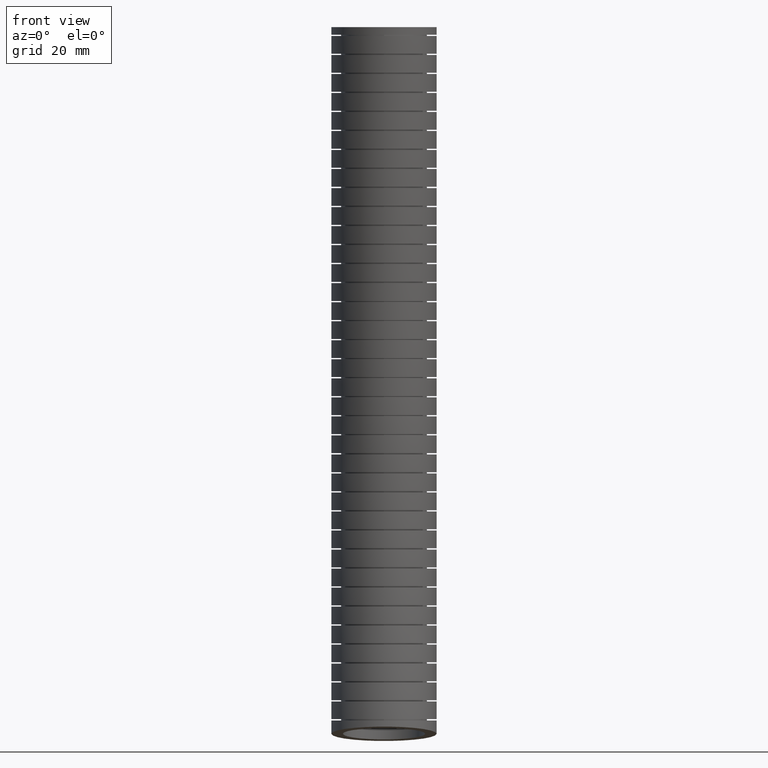
[diagram: clean part render]
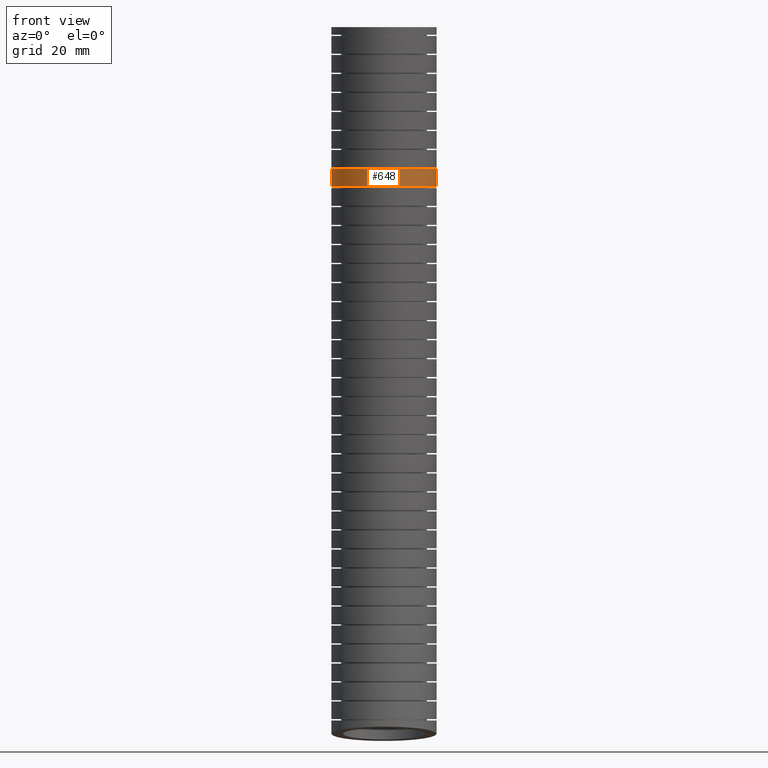
[diagram: same view with one face highlighted and labeled with its STEP entity id]
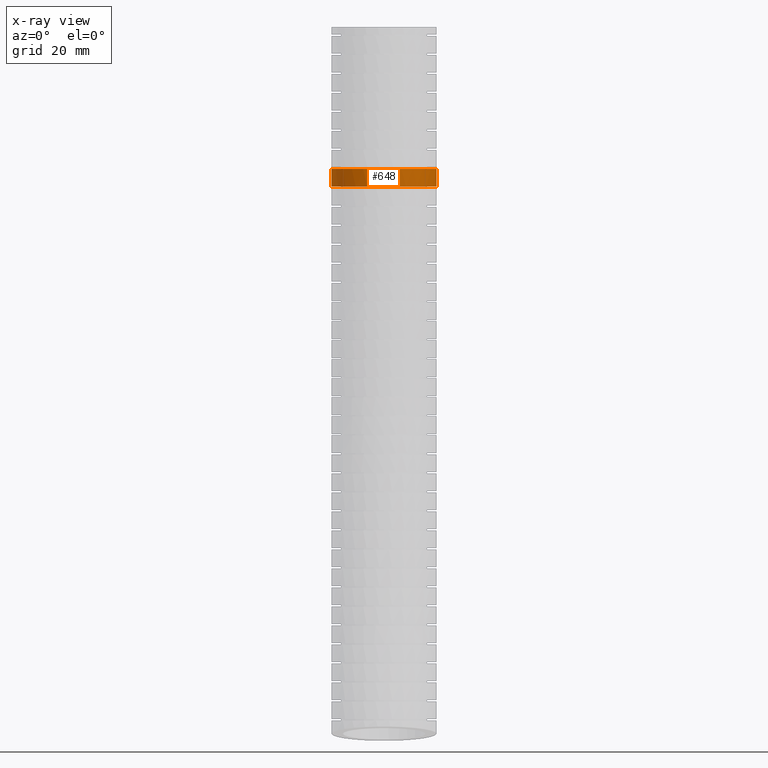
[diagram: x-ray of the same camera — body ghosted, the highlighted face saturated]
A machine part, front view. The second image highlights one B-rep face of the part: STEP entity #648.
The next image is the same camera in x-ray: the body ghosted, the highlighted face saturated — about 0% of this face is hidden behind the body in this view.
In plain terms, the highlighted face is a freeform B-spline surface patch.
Its self-contained STEP definition (entity closure, byte-faithful):
#648 = ADVANCED_FACE ( 'NONE', ( #9587 ), #9604, .T. ) ;
#650 = EDGE_LOOP ( 'NONE', ( #672, #681, #675, #670 ) ) ;
#667 = VERTEX_POINT ( 'NONE', #9816 ) ;
#668 = EDGE_CURVE ( 'NONE', #674, #667, #9860, .T. ) ;
#669 = EDGE_CURVE ( 'NONE', #676, #667, #9866, .T. ) ;
#670 = ORIENTED_EDGE ( 'NONE', *, *, #668, .F. ) ;
#671 = EDGE_CURVE ( 'NONE', #673, #676, #9885, .T. ) ;
#672 = ORIENTED_EDGE ( 'NONE', *, *, #680, .T. ) ;
#673 = VERTEX_POINT ( 'NONE', #9887 ) ;
#674 = VERTEX_POINT ( 'NONE', #9886 ) ;
#675 = ORIENTED_EDGE ( 'NONE', *, *, #669, .T. ) ;
#676 = VERTEX_POINT ( 'NONE', #9967 ) ;
#680 = EDGE_CURVE ( 'NONE', #674, #673, #9989, .T. ) ;
#681 = ORIENTED_EDGE ( 'NONE', *, *, #671, .T. ) ;
#9435 = CARTESIAN_POINT ( 'NONE',  ( 0.05414335177521617500, -0.3643553105292805000, -1.119038931790434800 ) ) ;
#9436 = CARTESIAN_POINT ( 'NONE',  ( 0.09432403986910784000, -0.3563664545651192300, -1.119038931790434600 ) ) ;
#9486 = CARTESIAN_POINT ( 'NONE',  ( 0.02721421621818757900, -0.3669872521209612800, -1.119038931790434100 ) ) ;
#9587 = FACE_OUTER_BOUND ( 'NONE', #650, .T. ) ;
#9602 = CARTESIAN_POINT ( 'NONE',  ( 0.4150000000000000900, 0.0000000000000000000, 0.0000000000000000000 ) ) ;
#9604 =( BOUNDED_SURFACE ( )  B_SPLINE_SURFACE ( 3, 3, ( 
 ( #9602, #9651, #9650, #9649, #9648, #9647 ),
 ( #9645, #9644, #9643, #9642, #9641, #9640 ),
 ( #9639, #9637, #9636, #9635, #9634, #9633 ),
 ( #9632, #9631, #9630, #9629, #9628, #9627 ),
 ( #9626, #9625, #9624, #9623, #9622, #9621 ),
 ( #9620, #9619, #9618, #9617, #9616, #9615 ),
 ( #9614, #9613, #9612, #9611, #9610, #9609 ) ),
 .UNSPECIFIED., .F., .F., .F. ) 
 B_SPLINE_SURFACE_WITH_KNOTS ( ( 4, 3, 4 ),
 ( 4, 1, 1, 4 ),
 ( 0.0000000000000000000, 0.5000000000000000000, 1.000000000000000000 ),
 ( 0.0000000000000000000, 0.5600000000000000500, 0.8973141982067990300, 1.000000000000000000 ),
 .UNSPECIFIED. ) 
 GEOMETRIC_REPRESENTATION_ITEM ( )  RATIONAL_B_SPLINE_SURFACE ( (
 ( 1.000000000000000000, 1.000000000000000000, 1.000000000000000000, 1.000000000000000000, 1.000000000000000000, 1.000000000000000000),
 ( 0.3333333333333333100, 0.3333333333333333100, 0.3333333333333333100, 0.3333333333333333100, 0.3333333333333332600, 0.3333333333333333100),
 ( 0.3333333333333333100, 0.3333333333333333100, 0.3333333333333333100, 0.3333333333333333100, 0.3333333333333332600, 0.3333333333333333100),
 ( 1.000000000000000000, 1.000000000000000000, 1.000000000000000000, 1.000000000000000000, 1.000000000000000000, 1.000000000000000000),
 ( 0.3333333333333333100, 0.3333333333333333100, 0.3333333333333333100, 0.3333333333333333100, 0.3333333333333332600, 0.3333333333333333100),
 ( 0.3333333333333333100, 0.3333333333333333100, 0.3333333333333333100, 0.3333333333333333100, 0.3333333333333332600, 0.3333333333333333100),
 ( 1.000000000000000000, 1.000000000000000000, 1.000000000000000000, 1.000000000000000000, 1.000000000000000000, 1.000000000000000000) ) ) 
 REPRESENTATION_ITEM ( '' )  SURFACE ( )  );
#9609 = CARTESIAN_POINT ( 'NONE',  ( 0.4150000000000000400, -0.03000000000000001600, -5.569999999999998500 ) ) ;
#9610 = CARTESIAN_POINT ( 'NONE',  ( 0.4150000000000000900, -0.01243844818931303500, -5.380037381098891700 ) ) ;
#9611 = CARTESIAN_POINT ( 'NONE',  ( 0.4150000000000000900, 0.06281132015026588700, -4.566063580857106200 ) ) ;
#9612 = CARTESIAN_POINT ( 'NONE',  ( 0.4149999999999999200, 0.1218071073635319700, -2.711443563840852700 ) ) ;
#9613 = CARTESIAN_POINT ( 'NONE',  ( 0.4150000000000000900, 0.04680663936954134600, -1.041922460934817000 ) ) ;
#9614 = CARTESIAN_POINT ( 'NONE',  ( 0.4150000000000000900, 0.0000000000000000000, 0.0000000000000000000 ) ) ;
#9615 = CARTESIAN_POINT ( 'NONE',  ( 0.4150000000000000400, 0.7922141346493595200, -5.683419208173947200 ) ) ;
#9616 = CARTESIAN_POINT ( 'NONE',  ( 0.4150000000000002000, 0.8104118928973711400, -5.486989566509566700 ) ) ;
#9617 = CARTESIAN_POINT ( 'NONE',  ( 0.4150000000000000400, 0.8883877521622221000, -4.645305119166129900 ) ) ;
#9618 = CARTESIAN_POINT ( 'NONE',  ( 0.4150000000000000400, 0.9528682252578860600, -2.732677208711230800 ) ) ;
#9619 = CARTESIAN_POINT ( 'NONE',  ( 0.4150000000000000900, 0.8772143935941071300, -1.050081882658727000 ) ) ;
#9620 = CARTESIAN_POINT ( 'NONE',  ( 0.4150000000000000900, 0.8300000000000001800, 0.0000000000000000000 ) ) ;
#9621 = CARTESIAN_POINT ( 'NONE',  ( -0.4149999999999999200, 0.7922141346493595200, -5.683419208173947200 ) ) ;
#9622 = CARTESIAN_POINT ( 'NONE',  ( -0.4150000000000000400, 0.8104118928973711400, -5.486989566509566700 ) ) ;
#9623 = CARTESIAN_POINT ( 'NONE',  ( -0.4149999999999999200, 0.8883877521622221000, -4.645305119166129900 ) ) ;
#9624 = CARTESIAN_POINT ( 'NONE',  ( -0.4149999999999999200, 0.9528682252578860600, -2.732677208711230800 ) ) ;
#9625 = CARTESIAN_POINT ( 'NONE',  ( -0.4149999999999999200, 0.8772143935941071300, -1.050081882658727000 ) ) ;
#9626 = CARTESIAN_POINT ( 'NONE',  ( -0.4150000000000000400, 0.8300000000000001800, 0.0000000000000000000 ) ) ;
#9627 = CARTESIAN_POINT ( 'NONE',  ( -0.4150000000000000400, -0.02999999999999996800, -5.569999999999998500 ) ) ;
#9628 = CARTESIAN_POINT ( 'NONE',  ( -0.4150000000000000900, -0.01243844818931298000, -5.380037381098891700 ) ) ;
#9629 = CARTESIAN_POINT ( 'NONE',  ( -0.4150000000000000900, 0.06281132015026594200, -4.566063580857106200 ) ) ;
#9630 = CARTESIAN_POINT ( 'NONE',  ( -0.4149999999999999200, 0.1218071073635320100, -2.711443563840852700 ) ) ;
#9631 = CARTESIAN_POINT ( 'NONE',  ( -0.4150000000000000900, 0.04680663936954139500, -1.041922460934817000 ) ) ;
#9632 = CARTESIAN_POINT ( 'NONE',  ( -0.4150000000000000900, 5.082284216461516900E-017, 0.0000000000000000000 ) ) ;
#9633 = CARTESIAN_POINT ( 'NONE',  ( -0.4150000000000000900, -0.8522141346493592500, -5.456580791826050700 ) ) ;
#9634 = CARTESIAN_POINT ( 'NONE',  ( -0.4150000000000002000, -0.8352887892759974800, -5.273085195688222100 ) ) ;
#9635 = CARTESIAN_POINT ( 'NONE',  ( -0.4150000000000000900, -0.7627651118616902700, -4.486822042548080700 ) ) ;
#9636 = CARTESIAN_POINT ( 'NONE',  ( -0.4150000000000000400, -0.7092540105308221500, -2.690209918970475100 ) ) ;
#9637 = CARTESIAN_POINT ( 'NONE',  ( -0.4150000000000000900, -0.7836011148550242600, -1.033763039210906500 ) ) ;
#9639 = CARTESIAN_POINT ( 'NONE',  ( -0.4150000000000000900, -0.8300000000000001800, 0.0000000000000000000 ) ) ;
#9640 = CARTESIAN_POINT ( 'NONE',  ( 0.4150000000000000400, -0.8522141346493592500, -5.456580791826050700 ) ) ;
#9641 = CARTESIAN_POINT ( 'NONE',  ( 0.4150000000000002000, -0.8352887892759974800, -5.273085195688222100 ) ) ;
#9642 = CARTESIAN_POINT ( 'NONE',  ( 0.4150000000000000400, -0.7627651118616902700, -4.486822042548080700 ) ) ;
#9643 = CARTESIAN_POINT ( 'NONE',  ( 0.4150000000000000400, -0.7092540105308221500, -2.690209918970475100 ) ) ;
#9644 = CARTESIAN_POINT ( 'NONE',  ( 0.4150000000000000900, -0.7836011148550242600, -1.033763039210906500 ) ) ;
#9645 = CARTESIAN_POINT ( 'NONE',  ( 0.4150000000000000900, -0.8300000000000001800, 0.0000000000000000000 ) ) ;
#9647 = CARTESIAN_POINT ( 'NONE',  ( 0.4150000000000000400, -0.03000000000000001600, -5.569999999999998500 ) ) ;
#9648 = CARTESIAN_POINT ( 'NONE',  ( 0.4150000000000000900, -0.01243844818931303500, -5.380037381098891700 ) ) ;
#9649 = CARTESIAN_POINT ( 'NONE',  ( 0.4150000000000000900, 0.06281132015026588700, -4.566063580857106200 ) ) ;
#9650 = CARTESIAN_POINT ( 'NONE',  ( 0.4149999999999999200, 0.1218071073635319700, -2.711443563840852700 ) ) ;
#9651 = CARTESIAN_POINT ( 'NONE',  ( 0.4150000000000000900, 0.04680663936954134600, -1.041922460934817000 ) ) ;
#9816 = CARTESIAN_POINT ( 'NONE',  ( 0.4150000000000000400, 0.05330489218318804800, -1.258930700372158200 ) ) ;
#9860 = B_SPLINE_CURVE_WITH_KNOTS ( 'NONE', 3,
 ( #9870, #9869, #9868, #9867 ),
 .UNSPECIFIED., .F., .F.,
 ( 4, 4 ),
 ( 0.2004996607153604100, 0.2255693674716094900 ),
 .UNSPECIFIED. ) ;
#9862 = CARTESIAN_POINT ( 'NONE',  ( -0.4044187189302733700, -0.04079719756292470000, -1.258930700372042500 ) ) ;
#9863 = CARTESIAN_POINT ( 'NONE',  ( -0.4123748926231183800, -0.0006850012226911148700, -1.258930700372042500 ) ) ;
#9864 = CARTESIAN_POINT ( 'NONE',  ( -0.4150000000000001500, 0.02622659230921097300, -1.258930700372042500 ) ) ;
#9865 = CARTESIAN_POINT ( 'NONE',  ( -0.4150000000000000400, 0.05330489218317947100, -1.258930700372042200 ) ) ;
#9866 = B_SPLINE_CURVE_WITH_KNOTS ( 'NONE', 3,
 ( #9865, #9864, #9863, #9862, #9929, #9928, #9927, #9926, #9925, #9924, #9923, #9922, #9921, #9920, #9919, #9918, #9917, #9916, #9915, #9914, #9913, #9912, #9911, #9910, #9909, #9908, #9907, #9906, #9905, #9904, #9903, #9902, #9901, #9900, #9899, #9898, #9897, #9896, #9895, #9894, #9893, #9892, #9891, #9890, #9889, #9888 ),
 .UNSPECIFIED., .F., .F.,
 ( 4, 2, 2, 1, 2, 2, 2, 2, 2, 2, 2, 2, 2, 2, 1, 2, 2, 2, 2, 2, 2, 2, 2, 4 ),
 ( 0.03295498399219155100, 0.03501420266650420000, 0.03604381200366053200, 0.03707342134081685600, 0.03810303067797318100, 0.03913264001512950500, 0.04119185868944215400, 0.04222146802659847200, 0.04325107736375480300, 0.04531029603806744500, 0.04633990537522376900, 0.04736951471238008700, 0.04942873338669273600, 0.05045834272384906000, 0.05148795206100538500, 0.05251756139816170200, 0.05354717073531803400, 0.05560638940963068300, 0.05766560808394331800, 0.05972482675825596700, 0.06075443609541229800, 0.06178404543256862300, 0.06384326410688127800, 0.06590248278119392700 ),
 .UNSPECIFIED. ) ;
#9867 = CARTESIAN_POINT ( 'NONE',  ( 0.4150000000000000400, 0.05330489218318804800, -1.258930700372158200 ) ) ;
#9868 = CARTESIAN_POINT ( 'NONE',  ( 0.4150000000000000900, 0.05157142052511407700, -1.212301728894816400 ) ) ;
#9869 = CARTESIAN_POINT ( 'NONE',  ( 0.4150000000000000900, 0.04979772333044992600, -1.165671077118308300 ) ) ;
#9870 = CARTESIAN_POINT ( 'NONE',  ( 0.4150000000000000900, 0.04798827125236013200, -1.119038931790541400 ) ) ;
#9885 = B_SPLINE_CURVE_WITH_KNOTS ( 'NONE', 3,
 ( #9966, #9965, #9964, #9963 ),
 .UNSPECIFIED., .F., .F.,
 ( 4, 4 ),
 ( 0.2004996607153411200, 0.2255693674715887900 ),
 .UNSPECIFIED. ) ;
#9886 = CARTESIAN_POINT ( 'NONE',  ( 0.4150000000000000900, 0.04798827125236013200, -1.119038931790541400 ) ) ;
#9887 = CARTESIAN_POINT ( 'NONE',  ( -0.4150000000000000900, 0.04798827125235183300, -1.119038931790433700 ) ) ;
#9888 = CARTESIAN_POINT ( 'NONE',  ( 0.4150000000000000400, 0.05330489218318804800, -1.258930700372158200 ) ) ;
#9889 = CARTESIAN_POINT ( 'NONE',  ( 0.4150000000000000900, 0.02589192768821626700, -1.258930700372158200 ) ) ;
#9890 = CARTESIAN_POINT ( 'NONE',  ( 0.4123098817644697000, -0.001236792752080873900, -1.258930700372042200 ) ) ;
#9891 = CARTESIAN_POINT ( 'NONE',  ( 0.4015703743661314700, -0.05492796679321752100, -1.258930700372043100 ) ) ;
#9892 = CARTESIAN_POINT ( 'NONE',  ( 0.3936126862575282700, -0.08094216147562433000, -1.258930700372043100 ) ) ;
#9893 = CARTESIAN_POINT ( 'NONE',  ( 0.3780585712320491700, -0.1183796128824816900, -1.258930700372042500 ) ) ;
#9894 = CARTESIAN_POINT ( 'NONE',  ( 0.3722620975097004100, -0.1306149561798782800, -1.258930700372042500 ) ) ;
#9895 = CARTESIAN_POINT ( 'NONE',  ( 0.3594225433962885400, -0.1545888346851783900, -1.258930700372042200 ) ) ;
#9896 = CARTESIAN_POINT ( 'NONE',  ( 0.3523366092290750600, -0.1663840625060350500, -1.258930700372042500 ) ) ;
#9897 = CARTESIAN_POINT ( 'NONE',  ( 0.3295895770647717100, -0.2003277861963280200, -1.258930700372042500 ) ) ;
#9898 = CARTESIAN_POINT ( 'NONE',  ( 0.3124057046630208100, -0.2211979860472358700, -1.258930700372042200 ) ) ;
#9899 = CARTESIAN_POINT ( 'NONE',  ( 0.2740666421084981800, -0.2594788964346497800, -1.258930700372042900 ) ) ;
#9900 = CARTESIAN_POINT ( 'NONE',  ( 0.2526866314176742200, -0.2769894493556691600, -1.258930700372042000 ) ) ;
#9901 = CARTESIAN_POINT ( 'NONE',  ( 0.2075965984882403900, -0.3070363607343978300, -1.258930700372042200 ) ) ;
#9902 = CARTESIAN_POINT ( 'NONE',  ( 0.1837500870722709700, -0.3197696454721773400, -1.258930700372042200 ) ) ;
#9903 = CARTESIAN_POINT ( 'NONE',  ( 0.1459970155400232800, -0.3353796580465979200, -1.258930700372042000 ) ) ;
#9904 = CARTESIAN_POINT ( 'NONE',  ( 0.1330358477512623100, -0.3400032781006981400, -1.258930700372042000 ) ) ;
#9905 = CARTESIAN_POINT ( 'NONE',  ( 0.1069977082212034600, -0.3478690364285380000, -1.258930700372042200 ) ) ;
#9906 = CARTESIAN_POINT ( 'NONE',  ( 0.08072001916455233400, -0.3544139121530232000, -1.258930700372043600 ) ) ;
#9907 = CARTESIAN_POINT ( 'NONE',  ( 0.05397229066219480500, -0.3583669775927985100, -1.258930700372041800 ) ) ;
#9908 = CARTESIAN_POINT ( 'NONE',  ( 0.02698726430145313400, -0.3610115761889518500, -1.258930700372042200 ) ) ;
#9909 = CARTESIAN_POINT ( 'NONE',  ( 0.01333155835557343200, -0.3616794479492782000, -1.258930700372043400 ) ) ;
#9910 = CARTESIAN_POINT ( 'NONE',  ( -0.02770973180170118200, -0.3616449486894200400, -1.258930700372043400 ) ) ;
#9911 = CARTESIAN_POINT ( 'NONE',  ( -0.05464388276721855700, -0.3589429962324998700, -1.258930700372041100 ) ) ;
#9912 = CARTESIAN_POINT ( 'NONE',  ( -0.09442700329818321000, -0.3510094928929067300, -1.258930700372041600 ) ) ;
#9913 = CARTESIAN_POINT ( 'NONE',  ( -0.1075842720639867000, -0.3477134971138304300, -1.258930700372042900 ) ) ;
#9914 = CARTESIAN_POINT ( 'NONE',  ( -0.1336858057524100100, -0.3397842310013435300, -1.258930700372042500 ) ) ;
#9915 = CARTESIAN_POINT ( 'NONE',  ( -0.1466216169387058200, -0.3351432608008624900, -1.258930700372042500 ) ) ;
#9916 = CARTESIAN_POINT ( 'NONE',  ( -0.1842524541613745900, -0.3195166445906320600, -1.258930700372042900 ) ) ;
#9917 = CARTESIAN_POINT ( 'NONE',  ( -0.2080776245166826000, -0.3067627228533808000, -1.258930700372042500 ) ) ;
#9918 = CARTESIAN_POINT ( 'NONE',  ( -0.2419265580221493200, -0.2841354588740499000, -1.258930700372042200 ) ) ;
#9919 = CARTESIAN_POINT ( 'NONE',  ( -0.2529468286415249000, -0.2759599362370387400, -1.258930700372041600 ) ) ;
#9920 = CARTESIAN_POINT ( 'NONE',  ( -0.2740459118041330100, -0.2586209276914342400, -1.258930700372042000 ) ) ;
#9921 = CARTESIAN_POINT ( 'NONE',  ( -0.2840929275131331400, -0.2494942803088658300, -1.258930700372043400 ) ) ;
#9922 = CARTESIAN_POINT ( 'NONE',  ( -0.3127684198238129300, -0.2207811365825160800, -1.258930700372043400 ) ) ;
#9923 = CARTESIAN_POINT ( 'NONE',  ( -0.3299453986764655000, -0.1998742262433991500, -1.258930700372042000 ) ) ;
#9924 = CARTESIAN_POINT ( 'NONE',  ( -0.3527111454632595500, -0.1657850420072759500, -1.258930700372042000 ) ) ;
#9925 = CARTESIAN_POINT ( 'NONE',  ( -0.3597477022684884600, -0.1540236565655363500, -1.258930700372042500 ) ) ;
#9926 = CARTESIAN_POINT ( 'NONE',  ( -0.3725215999605300800, -0.1300864984653864500, -1.258930700372042500 ) ) ;
#9927 = CARTESIAN_POINT ( 'NONE',  ( -0.3840684597561410700, -0.1056294169317557700, -1.258930700372041800 ) ) ;
#9928 = CARTESIAN_POINT ( 'NONE',  ( -0.3931902588553546900, -0.08014478287726326000, -1.258930700372042500 ) ) ;
#9929 = CARTESIAN_POINT ( 'NONE',  ( -0.4010789211143115900, -0.05413764113021876000, -1.258930700372042900 ) ) ;
#9963 = CARTESIAN_POINT ( 'NONE',  ( -0.4150000000000000400, 0.05330489218317947100, -1.258930700372042200 ) ) ;
#9964 = CARTESIAN_POINT ( 'NONE',  ( -0.4150000000000001500, 0.05157142052510985800, -1.212301728894703600 ) ) ;
#9965 = CARTESIAN_POINT ( 'NONE',  ( -0.4150000000000001500, 0.04979772333044574200, -1.165671077118198200 ) ) ;
#9966 = CARTESIAN_POINT ( 'NONE',  ( -0.4150000000000000900, 0.04798827125235183300, -1.119038931790433700 ) ) ;
#9967 = CARTESIAN_POINT ( 'NONE',  ( -0.4150000000000000400, 0.05330489218317947100, -1.258930700372042200 ) ) ;
#9968 = CARTESIAN_POINT ( 'NONE',  ( 0.1076398672241826600, -0.3530247804125005700, -1.119038931790433500 ) ) ;
#9969 = CARTESIAN_POINT ( 'NONE',  ( 0.1336205927882012100, -0.3451323227735663700, -1.119038931790433700 ) ) ;
#9970 = CARTESIAN_POINT ( 'NONE',  ( 0.1590936491559055700, -0.3360049144611737500, -1.119038931790433700 ) ) ;
#9971 = CARTESIAN_POINT ( 'NONE',  ( 0.1835650535036374700, -0.3244408981260532000, -1.119038931790434600 ) ) ;
#9972 = CARTESIAN_POINT ( 'NONE',  ( 0.2075279632726372000, -0.3116399233010009900, -1.119038931790434100 ) ) ;
#9973 = CARTESIAN_POINT ( 'NONE',  ( 0.2193179498695250800, -0.3045765612431580200, -1.119038931790433500 ) ) ;
#9974 = CARTESIAN_POINT ( 'NONE',  ( 0.2533480341837145400, -0.2818249974030700400, -1.119038931790433700 ) ) ;
#9975 = CARTESIAN_POINT ( 'NONE',  ( 0.2742451208263079200, -0.2646469460014352900, -1.119038931790434300 ) ) ;
#9976 = CARTESIAN_POINT ( 'NONE',  ( 0.3029690311205899800, -0.2359348270386047400, -1.119038931790434100 ) ) ;
#9977 = CARTESIAN_POINT ( 'NONE',  ( 0.3121035891030742900, -0.2258697694524617300, -1.119038931790433900 ) ) ;
#9978 = CARTESIAN_POINT ( 'NONE',  ( 0.3294641959975745900, -0.2047191038094000600, -1.119038931790434100 ) ) ;
#9979 = CARTESIAN_POINT ( 'NONE',  ( 0.3376072991789166900, -0.1937266511610022400, -1.119038931790434100 ) ) ;
#9980 = CARTESIAN_POINT ( 'NONE',  ( 0.3601994929678444800, -0.1598914347791689800, -1.119038931790434100 ) ) ;
#9981 = CARTESIAN_POINT ( 'NONE',  ( 0.3729494665871186400, -0.1360536233674053700, -1.119038931790433700 ) ) ;
#9982 = CARTESIAN_POINT ( 'NONE',  ( 0.3885759470787330000, -0.09835808902122737700, -1.119038931790433900 ) ) ;
#9983 = CARTESIAN_POINT ( 'NONE',  ( 0.3932138443448533500, -0.08539916343423137300, -1.119038931790433000 ) ) ;
#9984 = CARTESIAN_POINT ( 'NONE',  ( 0.4011154148312576800, -0.05932529153059743600, -1.119038931790433000 ) ) ;
#9985 = CARTESIAN_POINT ( 'NONE',  ( 0.4044013421963804100, -0.04617512764820337600, -1.119038931790433700 ) ) ;
#9986 = CARTESIAN_POINT ( 'NONE',  ( 0.4123090659507729300, -0.006392533340086661700, -1.119038931790433900 ) ) ;
#9987 = CARTESIAN_POINT ( 'NONE',  ( 0.4150000000000001500, 0.02056873059156347600, -1.119038931790541600 ) ) ;
#9988 = CARTESIAN_POINT ( 'NONE',  ( 0.4150000000000000900, 0.04798827125236013200, -1.119038931790541400 ) ) ;
#9989 = B_SPLINE_CURVE_WITH_KNOTS ( 'NONE', 3,
 ( #9988, #9987, #9986, #9985, #9984, #9983, #9982, #9981, #9980, #9979, #9978, #9977, #9976, #9975, #9974, #9973, #9972, #9971, #9970, #9969, #9968, #9436, #9435, #9486, #10046, #10045, #10044, #10043, #10042, #10041, #10040, #10039, #10038, #10037, #10036, #10035, #10034, #10033, #10032, #10031, #10030, #10029, #10028, #10027, #10026, #10025, #10024 ),
 .UNSPECIFIED., .F., .F.,
 ( 4, 2, 2, 2, 2, 2, 2, 2, 2, 1, 2, 2, 2, 2, 2, 2, 2, 2, 2, 2, 2, 2, 2, 4 ),
 ( 0.0000000000000000000, 0.002059713109955765300, 0.003089569664933647100, 0.004119426219911528900, 0.006179139329867293400, 0.007208995884845175600, 0.008238852439823057800, 0.01029856554977882400, 0.01132842210475670300, 0.01235827865973458500, 0.01338813521471246500, 0.01441799176969034800, 0.01647770487964610900, 0.01750756143462399100, 0.01853741798960187300, 0.02059713109955764100, 0.02162698765453552000, 0.02265684420951340200, 0.02471655731946916700, 0.02677627042942492700, 0.02780612698440281300, 0.02883598353938069500, 0.03089569664933645300, 0.03295540975929221700 ),
 .UNSPECIFIED. ) ;
#10024 = CARTESIAN_POINT ( 'NONE',  ( -0.4150000000000000900, 0.04798827125235183300, -1.119038931790433700 ) ) ;
#10025 = CARTESIAN_POINT ( 'NONE',  ( -0.4150000000000001500, 0.02090347212597636100, -1.119038931790433700 ) ) ;
#10026 = CARTESIAN_POINT ( 'NONE',  ( -0.4122859108105556600, -0.006602623941039936300, -1.119038931790434100 ) ) ;
#10027 = CARTESIAN_POINT ( 'NONE',  ( -0.4016789249787773300, -0.05977663305677925100, -1.119038931790433900 ) ) ;
#10028 = CARTESIAN_POINT ( 'NONE',  ( -0.3938346600056748500, -0.08564961658222748600, -1.119038931790433500 ) ) ;
#10029 = CARTESIAN_POINT ( 'NONE',  ( -0.3782101056310706600, -0.1233748524653590600, -1.119038931790433200 ) ) ;
#10030 = CARTESIAN_POINT ( 'NONE',  ( -0.3723213233969940300, -0.1358180867954912600, -1.119038931790432600 ) ) ;
#10031 = CARTESIAN_POINT ( 'NONE',  ( -0.3594745617249924300, -0.1598225011618145100, -1.119038931790433000 ) ) ;
#10032 = CARTESIAN_POINT ( 'NONE',  ( -0.3525000532056814000, -0.1714384150515513000, -1.119038931790433700 ) ) ;
#10033 = CARTESIAN_POINT ( 'NONE',  ( -0.3299573710103107500, -0.2051512666236338100, -1.119038931790433700 ) ) ;
#10034 = CARTESIAN_POINT ( 'NONE',  ( -0.3127503127319293300, -0.2261601435347466700, -1.119038931790433200 ) ) ;
#10035 = CARTESIAN_POINT ( 'NONE',  ( -0.2739993109066529700, -0.2648900695680964600, -1.119038931790433200 ) ) ;
#10036 = CARTESIAN_POINT ( 'NONE',  ( -0.2530376709615099800, -0.2820429946395259200, -1.119038931790433500 ) ) ;
#10037 = CARTESIAN_POINT ( 'NONE',  ( -0.2193057220608627100, -0.3045794487133028900, -1.119038931790433700 ) ) ;
#10038 = CARTESIAN_POINT ( 'NONE',  ( -0.2076773418450337200, -0.3115555176198848100, -1.119038931790434100 ) ) ;
#10039 = CARTESIAN_POINT ( 'NONE',  ( -0.1836329363431562800, -0.3244092014217629400, -1.119038931790434100 ) ) ;
#10040 = CARTESIAN_POINT ( 'NONE',  ( -0.1711943065566889100, -0.3302868549749540800, -1.119038931790434100 ) ) ;
#10041 = CARTESIAN_POINT ( 'NONE',  ( -0.1335100560471047200, -0.3458748029461838900, -1.119038931790434100 ) ) ;
#10042 = CARTESIAN_POINT ( 'NONE',  ( -0.1076397058700639100, -0.3537124797735234900, -1.119038931790434100 ) ) ;
#10043 = CARTESIAN_POINT ( 'NONE',  ( -0.06771927855923580400, -0.3616593380464855300, -1.119038931790434100 ) ) ;
#10044 = CARTESIAN_POINT ( 'NONE',  ( -0.05416405886343073100, -0.3636741798721954700, -1.119038931790434100 ) ) ;
#10045 = CARTESIAN_POINT ( 'NONE',  ( -0.02695533449813668600, -0.3663460963054097100, -1.119038931790434100 ) ) ;
#10046 = CARTESIAN_POINT ( 'NONE',  ( -0.01338684100600874900, -0.3670016179793874100, -1.119038931790434100 ) ) ;